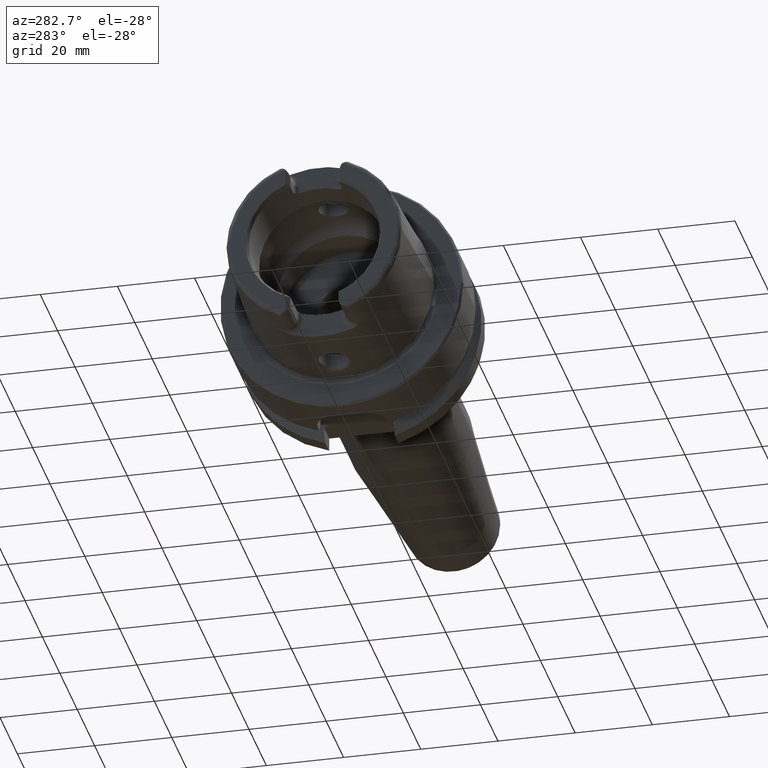
[diagram: clean part render]
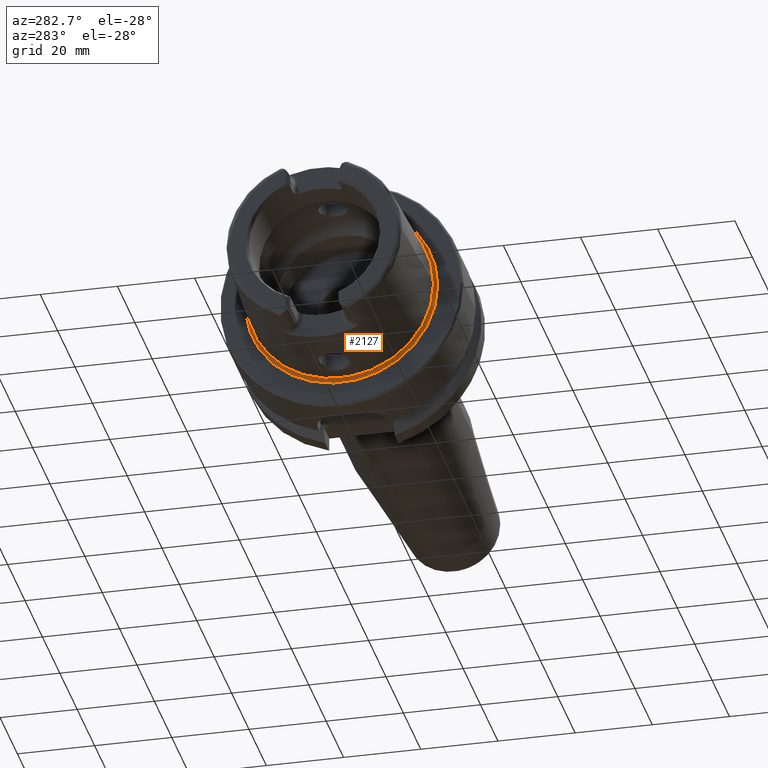
[diagram: same view with one face highlighted and labeled with its STEP entity id]
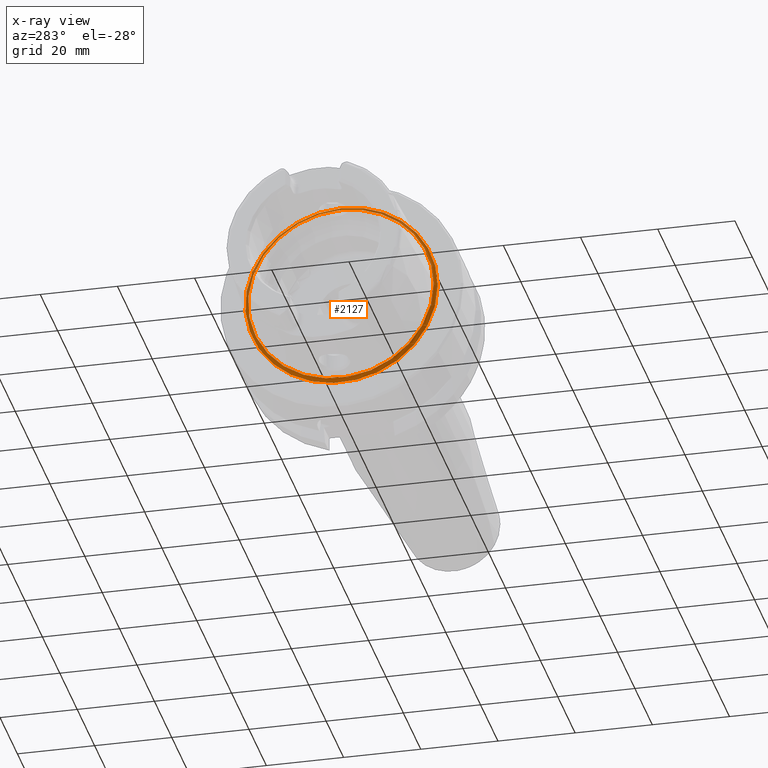
[diagram: x-ray of the same camera — body ghosted, the highlighted face saturated]
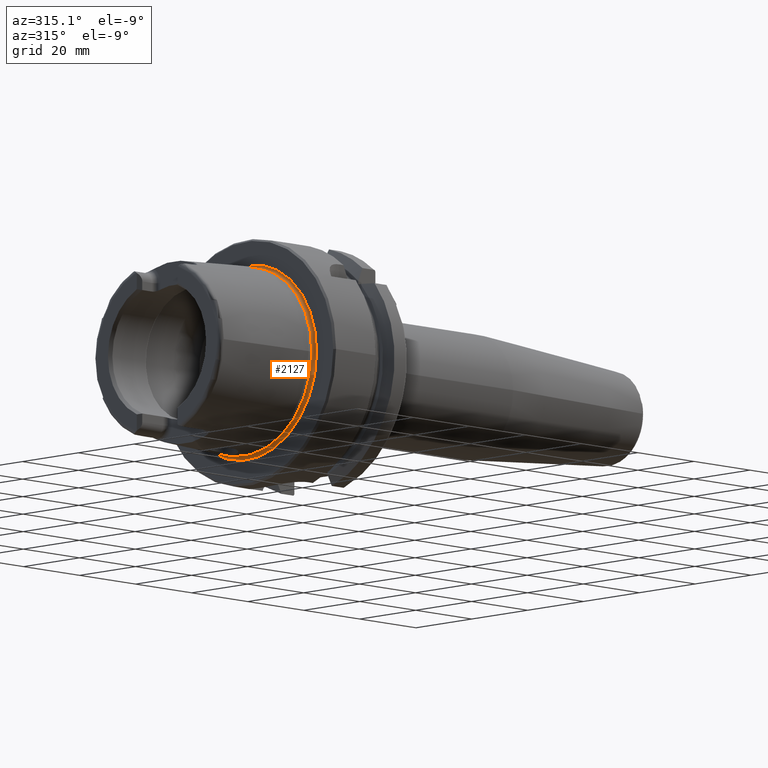
[diagram: same view with one face highlighted and labeled with its STEP entity id]
A machine part, auxiliary view. The second image highlights one B-rep face of the part: STEP entity #2127.
The next image is the same camera in x-ray: the body ghosted, the highlighted face saturated — about 13% of this face is hidden behind the body in this view.
A second angle (auxiliary view) of the same face is appended — the face is thin or edge-on in the first view.
In plain terms, the highlighted toroidal blend (fillet) surface has major radius 24.8204 mm and minor (blend) radius 0.8 mm.
Its self-contained STEP definition (entity closure, byte-faithful):
#167=TOROIDAL_SURFACE('',#2407,24.8204308617234,0.8);
#334=FACE_OUTER_BOUND('',#468,.T.);
#468=EDGE_LOOP('',(#1984,#1985,#1986,#1987,#1988,#1989));
#810=CIRCLE('',#2396,24.9317693424915);
#811=CIRCLE('',#2397,24.9317693424915);
#815=CIRCLE('',#2405,24.0204308617234);
#816=CIRCLE('',#2406,24.0204308617234);
#817=CIRCLE('',#2408,0.8);
#1020=VERTEX_POINT('',#4491);
#1021=VERTEX_POINT('',#4492);
#1025=VERTEX_POINT('',#4508);
#1026=VERTEX_POINT('',#4509);
#1336=EDGE_CURVE('',#1020,#1021,#810,.T.);
#1337=EDGE_CURVE('',#1021,#1020,#811,.T.);
#1344=EDGE_CURVE('',#1025,#1026,#815,.T.);
#1346=EDGE_CURVE('',#1026,#1025,#816,.T.);
#1347=EDGE_CURVE('',#1026,#1021,#817,.T.);
#1984=ORIENTED_EDGE('',*,*,#1344,.T.);
#1985=ORIENTED_EDGE('',*,*,#1347,.T.);
#1986=ORIENTED_EDGE('',*,*,#1336,.F.);
#1987=ORIENTED_EDGE('',*,*,#1337,.F.);
#1988=ORIENTED_EDGE('',*,*,#1347,.F.);
#1989=ORIENTED_EDGE('',*,*,#1346,.T.);
#2127=ADVANCED_FACE('',(#334),#167,.F.);
#2396=AXIS2_PLACEMENT_3D('',#4493,#3007,#3008);
#2397=AXIS2_PLACEMENT_3D('',#4494,#3009,#3010);
#2405=AXIS2_PLACEMENT_3D('',#4510,#3028,#3029);
#2406=AXIS2_PLACEMENT_3D('',#4512,#3031,#3032);
#2407=AXIS2_PLACEMENT_3D('',#4513,#3033,#3034);
#2408=AXIS2_PLACEMENT_3D('',#4514,#3035,#3036);
#3007=DIRECTION('center_axis',(1.,0.,0.));
#3008=DIRECTION('ref_axis',(0.,0.,-1.));
#3009=DIRECTION('center_axis',(1.,0.,0.));
#3010=DIRECTION('ref_axis',(0.,0.,-1.));
#3028=DIRECTION('center_axis',(1.,0.,0.));
#3029=DIRECTION('ref_axis',(0.,0.,-1.));
#3031=DIRECTION('center_axis',(1.,0.,0.));
#3032=DIRECTION('ref_axis',(0.,0.,-1.));
#3033=DIRECTION('center_axis',(1.,0.,0.));
#3034=DIRECTION('ref_axis',(0.,0.,-1.));
#3035=DIRECTION('center_axis',(0.,-1.,-1.22464679914735E-16));
#3036=DIRECTION('ref_axis',(0.,-1.22464679914735E-16,1.));
#4491=CARTESIAN_POINT('',(0.092214454993257,-24.9317693424915,-3.05326115223623E-15));
#4492=CARTESIAN_POINT('',(0.0922144549932569,-3.05326115223623E-15,24.9317693424915));
#4493=CARTESIAN_POINT('Origin',(0.0922144549932569,0.,0.));
#4494=CARTESIAN_POINT('Origin',(0.0922144549932569,0.,0.));
#4508=CARTESIAN_POINT('',(-0.7,-24.0204308617234,-2.94165437689499E-15));
#4509=CARTESIAN_POINT('',(-0.7,-2.94165437689499E-15,24.0204308617234));
#4510=CARTESIAN_POINT('Origin',(-0.7,0.,0.));
#4512=CARTESIAN_POINT('Origin',(-0.7,0.,0.));
#4513=CARTESIAN_POINT('Origin',(-0.7,0.,0.));
#4514=CARTESIAN_POINT('Origin',(-0.7,-3.03962612082678E-15,24.8204308617234));